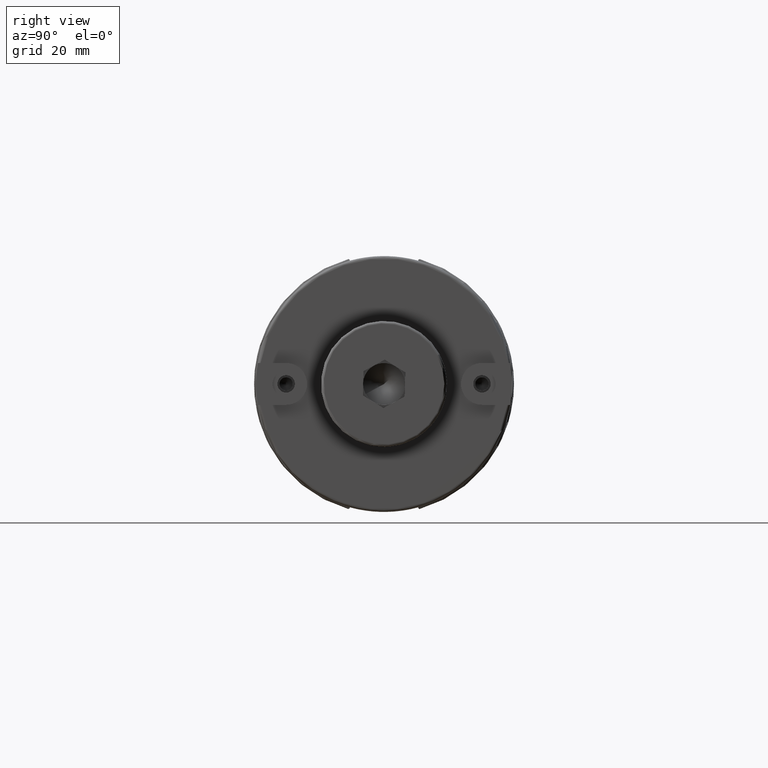
[diagram: clean part render]
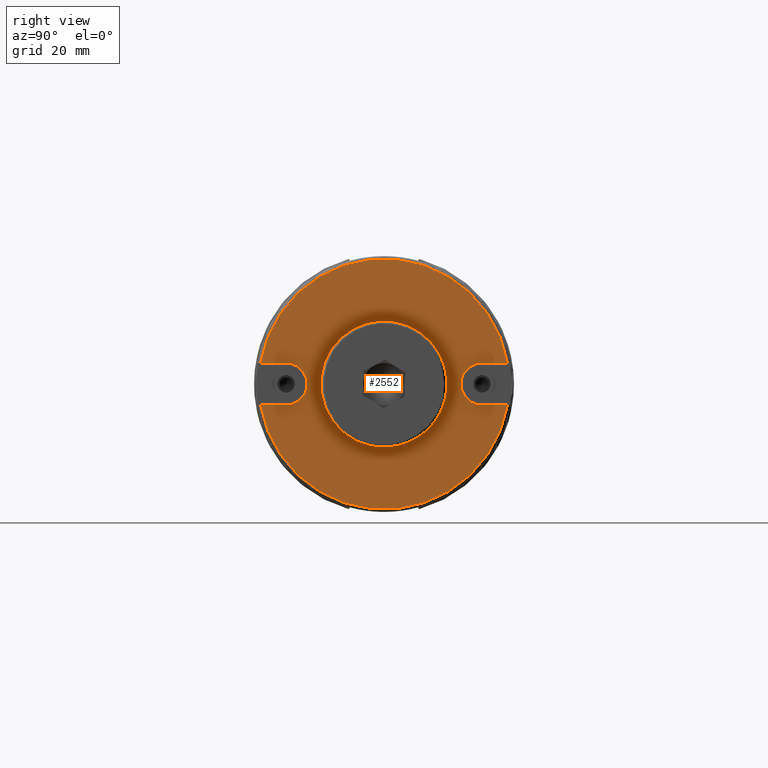
[diagram: same view with one face highlighted and labeled with its STEP entity id]
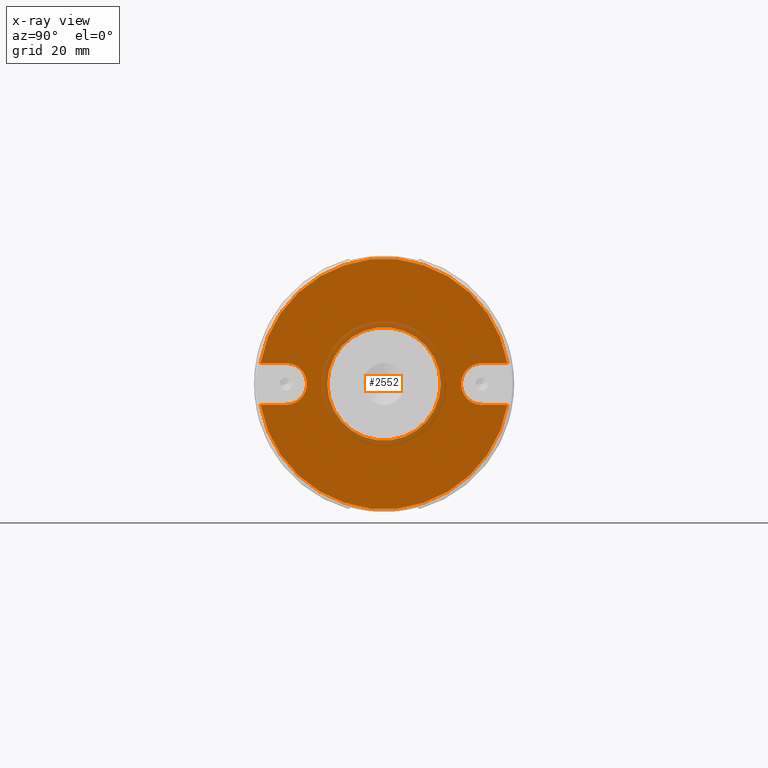
[diagram: x-ray of the same camera — body ghosted, the highlighted face saturated]
A machine part, right view. The second image highlights one B-rep face of the part: STEP entity #2552.
The next image is the same camera in x-ray: the body ghosted, the highlighted face saturated — about 7% of this face is hidden behind the body in this view.
In plain terms, the highlighted planar face has unit normal (1, 0, 0).
Its self-contained STEP definition (entity closure, byte-faithful):
#140=FACE_BOUND('',#509,.T.);
#171=CIRCLE('',#2764,7.935);
#178=CIRCLE('',#2774,47.425);
#179=CIRCLE('',#2776,47.425);
#185=CIRCLE('',#2788,7.935);
#199=CIRCLE('',#2808,21.473073944477);
#200=CIRCLE('',#2809,21.473073944477);
#366=FACE_OUTER_BOUND('',#508,.T.);
#508=EDGE_LOOP('',(#1794,#1795,#1796,#1797,#1798,#1799,#1800,#1801));
#509=EDGE_LOOP('',(#1802,#1803));
#651=LINE('',#3909,#801);
#660=LINE('',#3954,#810);
#670=LINE('',#4059,#820);
#675=LINE('',#4070,#825);
#801=VECTOR('',#3087,10.);
#810=VECTOR('',#3122,10.);
#820=VECTOR('',#3168,10.);
#825=VECTOR('',#3179,10.);
#999=VERTEX_POINT('',#3896);
#1001=VERTEX_POINT('',#3908);
#1012=VERTEX_POINT('',#3937);
#1014=VERTEX_POINT('',#3942);
#1028=VERTEX_POINT('',#4019);
#1029=VERTEX_POINT('',#4032);
#1035=VERTEX_POINT('',#4058);
#1038=VERTEX_POINT('',#4068);
#1051=VERTEX_POINT('',#4107);
#1052=VERTEX_POINT('',#4108);
#1280=EDGE_CURVE('',#1001,#999,#651,.T.);
#1294=EDGE_CURVE('',#1012,#1001,#171,.T.);
#1298=EDGE_CURVE('',#1014,#1012,#660,.T.);
#1314=EDGE_CURVE('',#1014,#1028,#178,.T.);
#1317=EDGE_CURVE('',#1029,#999,#179,.T.);
#1324=EDGE_CURVE('',#1035,#1028,#670,.T.);
#1330=EDGE_CURVE('',#1029,#1038,#675,.T.);
#1331=EDGE_CURVE('',#1038,#1035,#185,.T.);
#1348=EDGE_CURVE('',#1051,#1052,#199,.T.);
#1349=EDGE_CURVE('',#1052,#1051,#200,.T.);
#1794=ORIENTED_EDGE('',*,*,#1280,.T.);
#1795=ORIENTED_EDGE('',*,*,#1317,.F.);
#1796=ORIENTED_EDGE('',*,*,#1330,.T.);
#1797=ORIENTED_EDGE('',*,*,#1331,.T.);
#1798=ORIENTED_EDGE('',*,*,#1324,.T.);
#1799=ORIENTED_EDGE('',*,*,#1314,.F.);
#1800=ORIENTED_EDGE('',*,*,#1298,.T.);
#1801=ORIENTED_EDGE('',*,*,#1294,.T.);
#1802=ORIENTED_EDGE('',*,*,#1348,.F.);
#1803=ORIENTED_EDGE('',*,*,#1349,.F.);
#2480=PLANE('',#2807);
#2552=ADVANCED_FACE('',(#366,#140),#2480,.T.);
#2764=AXIS2_PLACEMENT_3D('',#3938,#3116,#3117);
#2774=AXIS2_PLACEMENT_3D('',#4020,#3146,#3147);
#2776=AXIS2_PLACEMENT_3D('',#4043,#3150,#3151);
#2788=AXIS2_PLACEMENT_3D('',#4072,#3182,#3183);
#2807=AXIS2_PLACEMENT_3D('',#4106,#3223,#3224);
#2808=AXIS2_PLACEMENT_3D('',#4109,#3225,#3226);
#2809=AXIS2_PLACEMENT_3D('',#4110,#3227,#3228);
#3087=DIRECTION('',(0.,-1.,4.09121799621721E-16));
#3116=DIRECTION('center_axis',(-1.,0.,0.));
#3117=DIRECTION('ref_axis',(0.,-6.82123419486333E-16,-1.));
#3122=DIRECTION('',(0.,1.,-4.09121799621721E-16));
#3146=DIRECTION('center_axis',(-1.,0.,0.));
#3147=DIRECTION('ref_axis',(0.,-1.,1.83697019872103E-16));
#3150=DIRECTION('center_axis',(-1.,0.,0.));
#3151=DIRECTION('ref_axis',(0.,-1.,1.83697019872103E-16));
#3168=DIRECTION('',(0.,1.,-2.86657119706986E-16));
#3179=DIRECTION('',(0.,-1.,2.86657119706986E-16));
#3182=DIRECTION('center_axis',(-1.,0.,0.));
#3183=DIRECTION('ref_axis',(0.,5.59658739571597E-16,1.));
#3223=DIRECTION('center_axis',(1.,0.,0.));
#3224=DIRECTION('ref_axis',(0.,0.,-1.));
#3225=DIRECTION('center_axis',(1.,0.,0.));
#3226=DIRECTION('ref_axis',(0.,0.,-1.));
#3227=DIRECTION('center_axis',(1.,0.,0.));
#3228=DIRECTION('ref_axis',(0.,0.,-1.));
#3896=CARTESIAN_POINT('',(101.6,-46.7564583774263,-7.93499999999999));
#3908=CARTESIAN_POINT('',(101.6,-37.06,-7.935));
#3909=CARTESIAN_POINT('',(101.6,-7.79346302776151,-7.93500000000001));
#3937=CARTESIAN_POINT('',(101.6,-37.06,7.935));
#3938=CARTESIAN_POINT('Origin',(101.6,-37.06,4.53854103764009E-15));
#3942=CARTESIAN_POINT('',(101.6,-46.7564583774263,7.93500000000001));
#3954=CARTESIAN_POINT('',(101.6,-17.4759630277615,7.93499999999999));
#4019=CARTESIAN_POINT('',(101.6,46.7564583774263,7.935));
#4020=CARTESIAN_POINT('Origin',(101.6,0.,0.));
#4032=CARTESIAN_POINT('',(101.6,46.7564583774263,-7.935));
#4043=CARTESIAN_POINT('Origin',(101.6,0.,0.));
#4058=CARTESIAN_POINT('',(101.6,37.06,7.935));
#4059=CARTESIAN_POINT('',(101.6,29.2665369722385,7.935));
#4068=CARTESIAN_POINT('',(101.6,37.06,-7.935));
#4070=CARTESIAN_POINT('',(101.6,38.9490369722385,-7.935));
#4072=CARTESIAN_POINT('Origin',(101.6,37.06,0.));
#4106=CARTESIAN_POINT('Origin',(101.6,21.473073944477,0.));
#4107=CARTESIAN_POINT('',(101.6,21.473073944477,0.));
#4108=CARTESIAN_POINT('',(101.6,-21.473073944477,-2.62969312739582E-15));
#4109=CARTESIAN_POINT('Origin',(101.6,0.,0.));
#4110=CARTESIAN_POINT('Origin',(101.6,0.,0.));